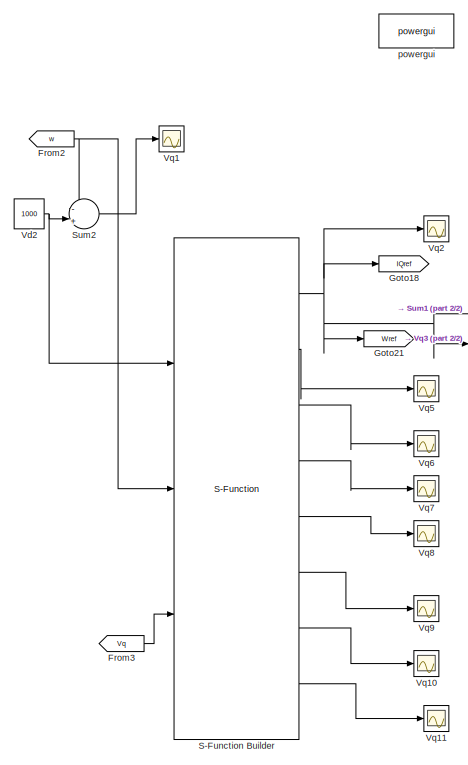
[diagram: root canvas - part 1/2, left side, full height]
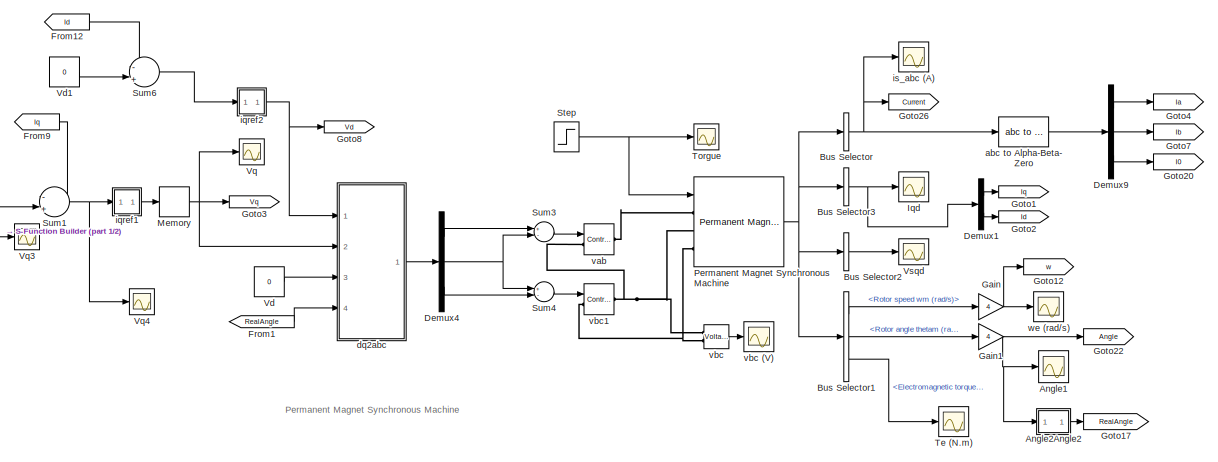
[diagram: root canvas - part 2/2, central region]
MODEL slx_30ae43de9666
KIND model
CONFIG AbsTol = auto
CONFIG FixedStep = auto
CONFIG InitFcn = global R;\nR = 2.875;\nglobal L;\nL = 0.00153;\nSampleT = 1e-4;\nR0 = 1.5;\nL0 = 2e-3;\nBeta1 = 10000; \nBeta2 = 50000;
CONFIG MaxStep = auto
CONFIG MinStep = auto
CONFIG RelTol = 1e-5
CONFIG SampleTimeConstraint = Unconstrained
CONFIG Solver = ode23tb
CONFIG SolverMode = SingleTasking
CONFIG SolverName = ode23tb
CONFIG StartTime = 0.0
CONFIG StopTime = 5
BLOCK [Scope] Angle1
  Ports = [1]
  ScopeSpecificationString = Simulink.scopes.TimeScopeBlockCfg('CurrentConfiguration', extmgr.ConfigurationSet(extmgr.Configuration('Core','General UI',true),extmgr.Configuration('Core','Source UI',true),extmgr.Configuration('Sources','WiredSimulink',true,'DataLoggingSaveFormat','Array','DataLoggingDecimation','1','DataLoggingDecimateData',true,'DataLoggingVariableName','ScopeData6'),extmgr.Configuration('Visuals','Time Domai...<+1704ch>
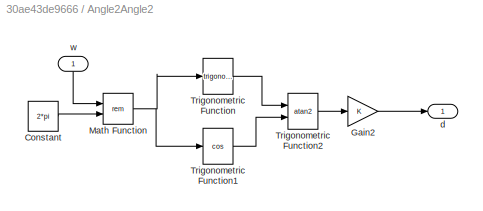
BLOCK [SubSystem] Angle2Angle2
  Ports = [1, 1]
  RequestExecContextInheritance = off
  Variant = off
BLOCK [Constant] Angle2Angle2/Constant
  Value = 2*pi
BLOCK [Gain] Angle2Angle2/Gain2
  OutDataTypeStr = Inherit: Inherit via internal rule
  ParamDataTypeStr = Inherit: Inherit via internal rule
  SaturateOnIntegerOverflow = off
BLOCK [Math] Angle2Angle2/Math Function
  Operator = rem
  Ports = [2, 1]
BLOCK [Trigonometry] Angle2Angle2/Trigonometric Function
  Ports = [1, 1]
BLOCK [Trigonometry] Angle2Angle2/Trigonometric Function1
  Operator = cos
  Ports = [1, 1]
BLOCK [Trigonometry] Angle2Angle2/Trigonometric Function2
  Operator = atan2
  Ports = [2, 1]
BLOCK [Outport] Angle2Angle2/d
  IconDisplay = Port number
BLOCK [Inport] Angle2Angle2/w
  IconDisplay = Port number
BLOCK [BusSelector] Bus Selector
  OutputAsBus = on
  OutputSignals = Stator current is_a (A),Stator current is_b (A),Stator current is_c (A)
  Ports = [1, 1]
BLOCK [BusSelector] Bus Selector1
  OutputSignals = Rotor speed wm (rad/s),Rotor angle thetam (rad),Electromagnetic torque Te (N*m)
  Ports = [1, 3]
BLOCK [BusSelector] Bus Selector2
  OutputAsBus = on
  OutputSignals = Stator voltage Vs_q (V),Stator voltage Vs_d (V)
  Ports = [1, 1]
BLOCK [BusSelector] Bus Selector3
  OutputAsBus = on
  OutputSignals = Stator current is_q (A),Stator current is_d (A)
  Ports = [1, 1]
BLOCK [Demux] Demux1
  DisplayOption = bar
  Outputs = 2
  Ports = [1, 2]
BLOCK [Demux] Demux4
  DisplayOption = bar
  Outputs = 3
  Ports = [1, 3]
BLOCK [Demux] Demux9
  DisplayOption = bar
  Outputs = 3
  Ports = [1, 3]
BLOCK [From] From1
  GotoTag = RealAngle
BLOCK [From] From12
  GotoTag = Id
BLOCK [From] From2
  GotoTag = w
BLOCK [From] From3
  GotoTag = Vq
BLOCK [From] From9
  GotoTag = Iq
BLOCK [Gain] Gain
  Gain = 4
BLOCK [Gain] Gain1
  Gain = 4
BLOCK [Goto] Goto1
  GotoTag = Iq
BLOCK [Goto] Goto12
  GotoTag = w
BLOCK [Goto] Goto17
  GotoTag = RealAngle
BLOCK [Goto] Goto18
  GotoTag = IQref
BLOCK [Goto] Goto2
  GotoTag = Id
BLOCK [Goto] Goto20
  GotoTag = I0
BLOCK [Goto] Goto21
  GotoTag = Wref
BLOCK [Goto] Goto22
  GotoTag = Angle
BLOCK [Goto] Goto26
  GotoTag = Current
BLOCK [Goto] Goto3
  GotoTag = Vq
BLOCK [Goto] Goto4
  GotoTag = Ia
BLOCK [Goto] Goto7
  GotoTag = Ib
BLOCK [Goto] Goto8
  GotoTag = Vd
BLOCK [Scope] Iqd 
  Ports = [1]
  ScopeSpecificationString = Simulink.scopes.TimeScopeBlockCfg('CurrentConfiguration', extmgr.ConfigurationSet(extmgr.Configuration('Core','General UI',true),extmgr.Configuration('Core','Source UI',true),extmgr.Configuration('Sources','WiredSimulink',true,'DataLoggingSaveFormat','Array','DataLoggingDecimation','1','DataLoggingDecimateData',true,'DataLoggingVariableName','ScopeData11'),extmgr.Configuration('Visuals','Time Doma...<+1721ch>
BLOCK [Memory] Memory
BLOCK [Reference] Permanent Magnet Synchronous Machine  REF=powerlib/Machines/Permanent Magnet
Synchronous Machine
  Ports = [1, 1, 0, 0, 0, 3]
  SourceBlock = powerlib/Machines/Permanent Magnet\nSynchronous Machine
  SourceType = Permanent Magnet Synchronous Machine
BLOCK [S-Function] S-Function Builder
  CopyFcn = set_param(gcbh,'LinkStatus','none')
  EnableBusSupport = off
  FunctionName = SfunctionTest
  InitFcn = try, set_param(gcb,'FunctionName','SfunctionTest'), end
  OpenFcn = sfunctionwizard(gcbh)
  Parameters = 0
  Ports = [3, 8]
  PreSaveFcn = try, set_param(gcb,'FunctionName','SfunctionTest'), end
  SFunctionDeploymentMode = off
  SFunctionModules = SfunctionTest_wrapper SfunctionAllocateTest PID L1Adaptive
BLOCK [Step] Step
  After = 0
  SampleTime = 0
  Time = 0
BLOCK [Sum] Sum1
  IconShape = round
  InputSameDT = off
  Inputs = -|+||
  OutDataTypeStr = Inherit: Inherit via internal rule
  Ports = [2, 1]
  SaturateOnIntegerOverflow = off
BLOCK [Sum] Sum2
  IconShape = round
  InputSameDT = off
  Inputs = -|+||
  OutDataTypeStr = Inherit: Inherit via internal rule
  Ports = [2, 1]
  SaturateOnIntegerOverflow = off
BLOCK [Sum] Sum3
  Inputs = +-
  Ports = [2, 1]
BLOCK [Sum] Sum4
  Inputs = +-
  Ports = [2, 1]
BLOCK [Sum] Sum6
  IconShape = round
  InputSameDT = off
  Inputs = -|+||
  OutDataTypeStr = Inherit: Inherit via internal rule
  Ports = [2, 1]
  SaturateOnIntegerOverflow = off
BLOCK [Scope] Te (N.m)
  Ports = [1]
  ScopeSpecificationString = Simulink.scopes.TimeScopeBlockCfg('CurrentConfiguration', extmgr.ConfigurationSet(extmgr.Configuration('Core','General UI',true),extmgr.Configuration('Core','Source UI',true),extmgr.Configuration('Sources','WiredSimulink',true,'DataLoggingSaveFormat','Array','DataLoggingDecimation','1','DataLoggingDecimateData',true),extmgr.Configuration('Visuals','Time Domain',true,'SerializedDisplays',{struct('M...<+1677ch>
BLOCK [Scope] Torgue
  Ports = [1]
  ScopeSpecificationString = Simulink.scopes.TimeScopeBlockCfg('CurrentConfiguration', extmgr.ConfigurationSet(extmgr.Configuration('Core','General UI',true),extmgr.Configuration('Core','Source UI',true),extmgr.Configuration('Sources','WiredSimulink',true,'DataLoggingVariableName','ScopeData1'),extmgr.Configuration('Visuals','Time Domain',true,'SerializedDisplays',{struct('MinYLimReal','-1.00000','MaxYLimReal','1.00000','YLab...<+1388ch>
BLOCK [Constant] Vd
  Value = 0
BLOCK [Constant] Vd1
  Value = 0
BLOCK [Constant] Vd2
  Value = 1000
BLOCK [Scope] Vq
  Ports = [1]
  ScopeSpecificationString = Simulink.scopes.TimeScopeBlockCfg('CurrentConfiguration', extmgr.ConfigurationSet(extmgr.Configuration('Core','General UI',true),extmgr.Configuration('Core','Source UI',true),extmgr.Configuration('Sources','WiredSimulink',true,'DataLoggingVariableName','ScopeData4'),extmgr.Configuration('Visuals','Time Domain',true,'SerializedDisplays',{struct('MinYLimReal','-375.00000','MaxYLimReal','3375.00000',...<+1427ch>
BLOCK [Scope] Vq1
  Ports = [1]
  ScopeSpecificationString = Simulink.scopes.TimeScopeBlockCfg('CurrentConfiguration', extmgr.ConfigurationSet(extmgr.Configuration('Core','General UI',true),extmgr.Configuration('Core','Source UI',true),extmgr.Configuration('Sources','WiredSimulink',true,'DataLoggingVariableName','ScopeData1','DataLoggingSaveFormat','Array','DataLoggingDecimation','1','DataLoggingDecimateData',true),extmgr.Configuration('Visuals','Time Domai...<+1489ch>
BLOCK [Scope] Vq10
  Ports = [1]
  ScopeSpecificationString = Simulink.scopes.TimeScopeBlockCfg('CurrentConfiguration', extmgr.ConfigurationSet(extmgr.Configuration('Core','General UI',true),extmgr.Configuration('Core','Source UI',true),extmgr.Configuration('Sources','WiredSimulink',true,'DataLoggingVariableName','ScopeData6'),extmgr.Configuration('Visuals','Time Domain',true,'SerializedDisplays',{struct('MinYLimReal','-30772.11571','MaxYLimReal','3696.42418...<+1461ch>
BLOCK [Scope] Vq11
  Ports = [1]
  ScopeSpecificationString = C++SS(StrPVP('SaveName','ScopeData1'),StrPVP('LimitDataPoints','on'),StrPVP('DataFormat','Array'),StrPVP('Decimation','1'),StrPVP('BlockParamSampleInput','off'))
BLOCK [Scope] Vq2
  Ports = [1]
  ScopeSpecificationString = Simulink.scopes.TimeScopeBlockCfg('CurrentConfiguration', extmgr.ConfigurationSet(extmgr.Configuration('Core','General UI',true),extmgr.Configuration('Core','Source UI',true),extmgr.Configuration('Sources','WiredSimulink',true,'DataLoggingVariableName','ScopeData3'),extmgr.Configuration('Visuals','Time Domain',true,'SerializedDisplays',{struct('MinYLimReal','-260614.37891','MaxYLimReal','264248.31...<+1475ch>
BLOCK [Scope] Vq3
  Ports = [1]
  ScopeSpecificationString = Simulink.scopes.TimeScopeBlockCfg('CurrentConfiguration', extmgr.ConfigurationSet(extmgr.Configuration('Core','General UI',true),extmgr.Configuration('Core','Source UI',true),extmgr.Configuration('Sources','WiredSimulink',true,'DataLoggingVariableName','ScopeData2','DataLoggingSaveFormat','Array','DataLoggingDecimation','1','DataLoggingDecimateData',true),extmgr.Configuration('Visuals','Time Domai...<+1513ch>
BLOCK [Scope] Vq4
  Ports = [1]
  ScopeSpecificationString = Simulink.scopes.TimeScopeBlockCfg('CurrentConfiguration', extmgr.ConfigurationSet(extmgr.Configuration('Core','General UI',true),extmgr.Configuration('Core','Source UI',true),extmgr.Configuration('Sources','WiredSimulink',true,'DataLoggingVariableName','ScopeData1'),extmgr.Configuration('Visuals','Time Domain',true,'SerializedDisplays',{struct('MinYLimReal','-25.01802','MaxYLimReal','225.02423','Y...<+1398ch>
BLOCK [Scope] Vq5
  Ports = [1]
  ScopeSpecificationString = Simulink.scopes.TimeScopeBlockCfg('CurrentConfiguration', extmgr.ConfigurationSet(extmgr.Configuration('Core','General UI',true),extmgr.Configuration('Core','Source UI',true),extmgr.Configuration('Sources','WiredSimulink',true,'DataLoggingVariableName','ScopeData1'),extmgr.Configuration('Visuals','Time Domain',true,'SerializedDisplays',{struct('MinYLimReal','-1619.60815','MaxYLimReal','15503.18346...<+1459ch>
BLOCK [Scope] Vq6
  Ports = [1]
  ScopeSpecificationString = Simulink.scopes.TimeScopeBlockCfg('CurrentConfiguration', extmgr.ConfigurationSet(extmgr.Configuration('Core','General UI',true),extmgr.Configuration('Core','Source UI',true),extmgr.Configuration('Sources','WiredSimulink',true,'DataLoggingVariableName','ScopeData2'),extmgr.Configuration('Visuals','Time Domain',true,'SerializedDisplays',{struct('MinYLimReal','-255897.58203','MaxYLimReal','258500.89...<+1469ch>
BLOCK [Scope] Vq7
  Ports = [1]
  ScopeSpecificationString = Simulink.scopes.TimeScopeBlockCfg('CurrentConfiguration', extmgr.ConfigurationSet(extmgr.Configuration('Core','General UI',true),extmgr.Configuration('Core','Source UI',true),extmgr.Configuration('Sources','WiredSimulink',true,'DataLoggingVariableName','ScopeData3'),extmgr.Configuration('Visuals','Time Domain',true,'SerializedDisplays',{struct('MinYLimReal','-10543.54578','MaxYLimReal','6875.25183...<+1461ch>
BLOCK [Scope] Vq8
  Ports = [1]
  ScopeSpecificationString = Simulink.scopes.TimeScopeBlockCfg('CurrentConfiguration', extmgr.ConfigurationSet(extmgr.Configuration('Core','General UI',true),extmgr.Configuration('Core','Source UI',true),extmgr.Configuration('Sources','WiredSimulink',true,'DataLoggingVariableName','ScopeData4'),extmgr.Configuration('Visuals','Time Domain',true,'SerializedDisplays',{struct('MinYLimReal','-322.08305','MaxYLimReal','1146.89812',...<+1470ch>
BLOCK [Scope] Vq9
  Ports = [1]
  ScopeSpecificationString = Simulink.scopes.TimeScopeBlockCfg('CurrentConfiguration', extmgr.ConfigurationSet(extmgr.Configuration('Core','General UI',true),extmgr.Configuration('Core','Source UI',true),extmgr.Configuration('Sources','WiredSimulink',true,'DataLoggingVariableName','ScopeData5'),extmgr.Configuration('Visuals','Time Domain',true,'SerializedDisplays',{struct('MinYLimReal','-144.28869','MaxYLimReal','721.53887','...<+1447ch>
BLOCK [Scope] Vsqd
  Ports = [1]
  ScopeSpecificationString = Simulink.scopes.TimeScopeBlockCfg('CurrentConfiguration', extmgr.ConfigurationSet(extmgr.Configuration('Core','General UI',true),extmgr.Configuration('Core','Source UI',true),extmgr.Configuration('Sources','WiredSimulink',true,'DataLoggingSaveFormat','Array','DataLoggingDecimation','1','DataLoggingDecimateData',true,'DataLoggingVariableName','ScopeData10'),extmgr.Configuration('Visuals','Time Doma...<+1723ch>
BLOCK [Reference] abc to Alpha-Beta-Zero  REF=powerlib_meascontrol/Transformations/abc to
Alpha-Beta-Zero
  Ports = [1, 1]
  SourceBlock = powerlib_meascontrol/Transformations/abc to\nAlpha-Beta-Zero
  SourceType = abc to Alpha-Beta-Zero Transformation
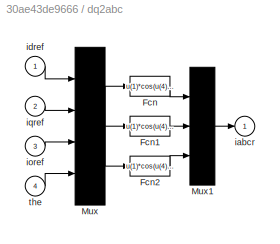
BLOCK [SubSystem] dq2abc
  Ports = [4, 1]
  RequestExecContextInheritance = off
  Variant = off
BLOCK [Fcn] dq2abc/Fcn
  Expr = u(1)*cos(u(4)) - u(2)*sin(u(4)) + u(3)
BLOCK [Fcn] dq2abc/Fcn1
  Expr = u(1)*cos(u(4)-2*pi/3) - u(2)*sin(u(4)-2*pi/3) + u(3)
BLOCK [Fcn] dq2abc/Fcn2
  Expr = u(1)*cos(u(4)+2*pi/3) - u(2)*sin(u(4)+2*pi/3) + u(3)
BLOCK [Mux] dq2abc/Mux
  Ports = [4, 1]
BLOCK [Mux] dq2abc/Mux1
  Inputs = 3
  Ports = [3, 1]
BLOCK [Outport] dq2abc/iabcr
  IconDisplay = Port number
  InitialOutput = 0
BLOCK [Inport] dq2abc/idref
  IconDisplay = Port number
BLOCK [Inport] dq2abc/ioref
  IconDisplay = Port number
  Port = 3
BLOCK [Inport] dq2abc/iqref
  IconDisplay = Port number
  Port = 2
BLOCK [Inport] dq2abc/the
  IconDisplay = Port number
  Port = 4
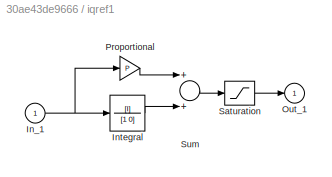
BLOCK [SubSystem] iqref1
  Ports = [1, 1]
  RequestExecContextInheritance = off
  Variant = off
BLOCK [Inport] iqref1/In_1
  IconDisplay = Port number
BLOCK [TransferFcn] iqref1/Integral
  Denominator = [1 0]
  Numerator = [I]
BLOCK [Outport] iqref1/Out_1
  IconDisplay = Port number
  InitialOutput = 0
BLOCK [Gain] iqref1/Proportional
  Gain = P
BLOCK [Saturate] iqref1/Saturation
  InputPortMap = u0
  LowerLimit = min
  Ports = [1, 1]
  UpperLimit = max
BLOCK [Sum] iqref1/Sum
  Ports = [2, 1]
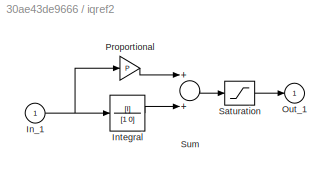
BLOCK [SubSystem] iqref2
  Ports = [1, 1]
  RequestExecContextInheritance = off
  Variant = off
BLOCK [Inport] iqref2/In_1
  IconDisplay = Port number
BLOCK [TransferFcn] iqref2/Integral
  Denominator = [1 0]
  Numerator = [I]
BLOCK [Outport] iqref2/Out_1
  IconDisplay = Port number
  InitialOutput = 0
BLOCK [Gain] iqref2/Proportional
  Gain = P
BLOCK [Saturate] iqref2/Saturation
  InputPortMap = u0
  LowerLimit = min
  Ports = [1, 1]
  UpperLimit = max
BLOCK [Sum] iqref2/Sum
  Ports = [2, 1]
BLOCK [Scope] is_abc (A)
  Ports = [1]
  ScopeSpecificationString = Simulink.scopes.TimeScopeBlockCfg('CurrentConfiguration', extmgr.ConfigurationSet(extmgr.Configuration('Core','General UI',true),extmgr.Configuration('Core','Source UI',true),extmgr.Configuration('Sources','WiredSimulink',true,'DataLoggingSaveFormat','Array','DataLoggingDecimation','1','DataLoggingDecimateData',true),extmgr.Configuration('Visuals','Time Domain',true,'SerializedDisplays',{struct('M...<+1697ch>
BLOCK [Reference] powergui  REF=powerlib/powergui
  Ports = []
  SourceBlock = powerlib/powergui
  SourceType = PSB option menu block
  UserDataPersistent = on
BLOCK [Reference] vab  REF=powerlib/Electrical
Sources/Controlled Voltage Source
  AttributesFormatString = \n
  Description = source block
  Ports = [1, 0, 0, 0, 0, 1, 1]
  SourceBlock = powerlib/Electrical\nSources/Controlled Voltage Source
  SourceType = Controlled Voltage Source
BLOCK [Reference] vbc  REF=powerlib/Measurements/Voltage Measurement
  AttributesFormatString = \n
  Ports = [0, 1, 0, 0, 0, 2]
  SourceBlock = powerlib/Measurements/Voltage Measurement
  SourceType = Voltage Measurement
  Tag = PoWeRsYsTeMmEaSuReMeNt
BLOCK [Scope] vbc (V)
  Ports = [1]
  ScopeSpecificationString = Simulink.scopes.TimeScopeBlockCfg('CurrentConfiguration', extmgr.ConfigurationSet(extmgr.Configuration('Core','General UI',true),extmgr.Configuration('Core','Source UI',true),extmgr.Configuration('Sources','WiredSimulink',true,'DataLoggingSaveFormat','Array','DataLoggingDecimation','1','DataLoggingDecimateData',true),extmgr.Configuration('Visuals','Time Domain',true,'SerializedDisplays',{struct('M...<+1668ch>
BLOCK [Reference] vbc1  REF=powerlib/Electrical
Sources/Controlled Voltage Source
  AttributesFormatString = \n
  Description = source block
  Ports = [1, 0, 0, 0, 0, 1, 1]
  SourceBlock = powerlib/Electrical\nSources/Controlled Voltage Source
  SourceType = Controlled Voltage Source
BLOCK [Scope] we (rad//s)
  Ports = [1]
  ScopeSpecificationString = Simulink.scopes.TimeScopeBlockCfg('CurrentConfiguration', extmgr.ConfigurationSet(extmgr.Configuration('Core','General UI',true),extmgr.Configuration('Core','Source UI',true),extmgr.Configuration('Sources','WiredSimulink',true,'DataLoggingSaveFormat','Array','DataLoggingDecimation','1','DataLoggingDecimateData',true),extmgr.Configuration('Visuals','Time Domain',true,'SerializedDisplays',{struct('M...<+1646ch>
ANNOTATION (root): Permanent Magnet Synchronous Machine
LINE Angle2Angle2/Constant:1 -> Angle2Angle2/Math Function:2
LINE Angle2Angle2/Gain2:1 -> Angle2Angle2/d:1
NET Angle2Angle2/Math Function:1 -> Angle2Angle2/Trigonometric Function1:1, Angle2Angle2/Trigonometric Function:1
LINE Angle2Angle2/Trigonometric Function1:1 -> Angle2Angle2/Trigonometric Function2:2
LINE Angle2Angle2/Trigonometric Function2:1 -> Angle2Angle2/Gain2:1
LINE Angle2Angle2/Trigonometric Function:1 -> Angle2Angle2/Trigonometric Function2:1
LINE Angle2Angle2/w:1 -> Angle2Angle2/Math Function:1
LINE Angle2Angle2:1 -> Goto17:1
LINE Bus Selector1:1 -> Gain:1
LINE Bus Selector1:2 -> Gain1:1
LINE Bus Selector1:3 -> Te (N.m):1
LINE Bus Selector2:1 -> Vsqd:1
NET Bus Selector3:1 -> Demux1:1, Iqd :1
NET Bus Selector:1 -> Goto26:1, abc to Alpha-Beta-Zero:1, is_abc (A):1
LINE Demux1:1 -> Goto1:1
LINE Demux1:2 -> Goto2:1
LINE Demux4:1 -> Sum3:1
NET Demux4:2 -> Sum3:2, Sum4:1
LINE Demux4:3 -> Sum4:2
LINE Demux9:1 -> Goto4:1
LINE Demux9:2 -> Goto7:1
LINE Demux9:3 -> Goto20:1
LINE From12:1 -> Sum6:1
LINE From1:1 -> dq2abc:4
NET From2:1 -> S-Function Builder:2, Sum2:1
LINE From3:1 -> S-Function Builder:3
LINE From9:1 -> Sum1:1
NET Gain1:1 -> Angle1:1, Angle2Angle2:1, Goto22:1
NET Gain:1 -> Goto12:1, we (rad//s):1
NET Memory:1 -> Goto3:1, Vq:1, dq2abc:2
NET Permanent Magnet Synchronous Machine:1 -> Bus Selector1:1, Bus Selector2:1, Bus Selector3:1, Bus Selector:1
NET S-Function Builder:1 -> Goto18:1, Goto21:1, Sum1:2, Vq2:1, Vq3:1
LINE S-Function Builder:2 -> Vq5:1
LINE S-Function Builder:3 -> Vq6:1
LINE S-Function Builder:4 -> Vq7:1
LINE S-Function Builder:5 -> Vq8:1
LINE S-Function Builder:6 -> Vq9:1
LINE S-Function Builder:7 -> Vq10:1
LINE S-Function Builder:8 -> Vq11:1
NET Step:1 -> Permanent Magnet Synchronous Machine:1, Torgue:1
NET Sum1:1 -> Vq4:1, iqref1:1
LINE Sum2:1 -> Vq1:1
LINE Sum3:1 -> vab:1
LINE Sum4:1 -> vbc1:1
LINE Sum6:1 -> iqref2:1
LINE Vd1:1 -> Sum6:2
NET Vd2:1 -> S-Function Builder:1, Sum2:2
LINE Vd:1 -> dq2abc:3
LINE abc to Alpha-Beta-Zero:1 -> Demux9:1
LINE dq2abc/Fcn1:1 -> dq2abc/Mux1:2
LINE dq2abc/Fcn2:1 -> dq2abc/Mux1:3
LINE dq2abc/Fcn:1 -> dq2abc/Mux1:1
LINE dq2abc/Mux1:1 -> dq2abc/iabcr:1
NET dq2abc/Mux:1 -> dq2abc/Fcn1:1, dq2abc/Fcn2:1, dq2abc/Fcn:1
LINE dq2abc/idref:1 -> dq2abc/Mux:1
LINE dq2abc/ioref:1 -> dq2abc/Mux:3
LINE dq2abc/iqref:1 -> dq2abc/Mux:2
LINE dq2abc/the:1 -> dq2abc/Mux:4
LINE dq2abc:1 -> Demux4:1
NET iqref1/In_1:1 -> iqref1/Integral:1, iqref1/Proportional:1
LINE iqref1/Integral:1 -> iqref1/Sum:2
LINE iqref1/Proportional:1 -> iqref1/Sum:1
LINE iqref1/Saturation:1 -> iqref1/Out_1:1
LINE iqref1/Sum:1 -> iqref1/Saturation:1
LINE iqref1:1 -> Memory:1
NET iqref2/In_1:1 -> iqref2/Integral:1, iqref2/Proportional:1
LINE iqref2/Integral:1 -> iqref2/Sum:2
LINE iqref2/Proportional:1 -> iqref2/Sum:1
LINE iqref2/Saturation:1 -> iqref2/Out_1:1
LINE iqref2/Sum:1 -> iqref2/Saturation:1
NET iqref2:1 -> Goto8:1, dq2abc:1
LINE vbc:1 -> vbc (V):1
PLINE Permanent Magnet Synchronous Machine:LConn1 -- vab:RConn1
PNET net1: Permanent Magnet Synchronous Machine:LConn2 -- vab:LConn1 -- vbc1:RConn1 -- vbc:LConn1
PNET net2: Permanent Magnet Synchronous Machine:LConn3 -- vbc1:LConn1 -- vbc:LConn2
note: NET lines group one-source signal fan-out (src -> all destinations, sorted); 1:1 wires keep LINE; PNET lines group multi-terminal physical nets as a canonical sorted terminal list (undirected conserving connections); 2-terminal nets keep the pairwise PLINE form
